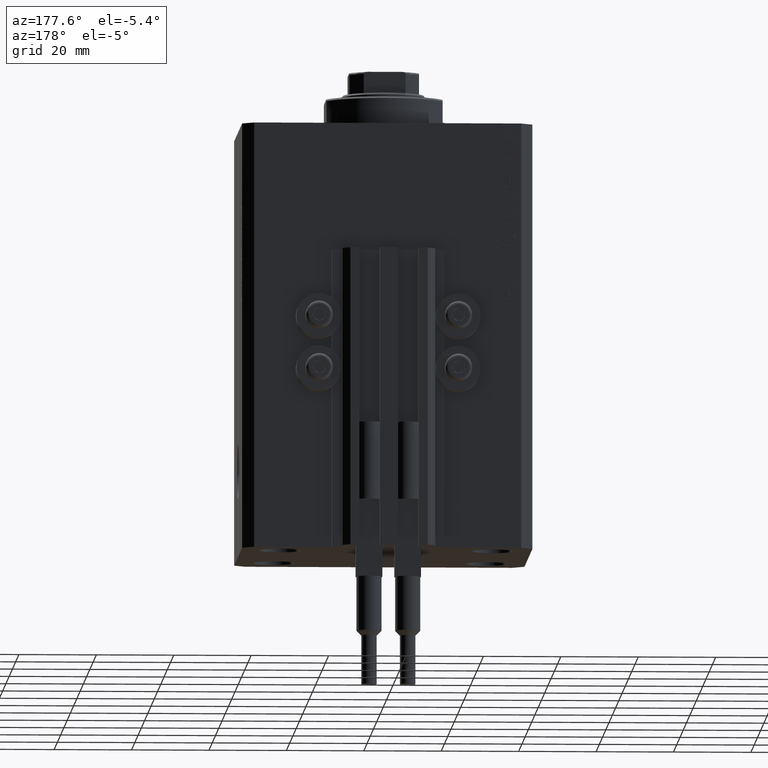
[diagram: clean part render]
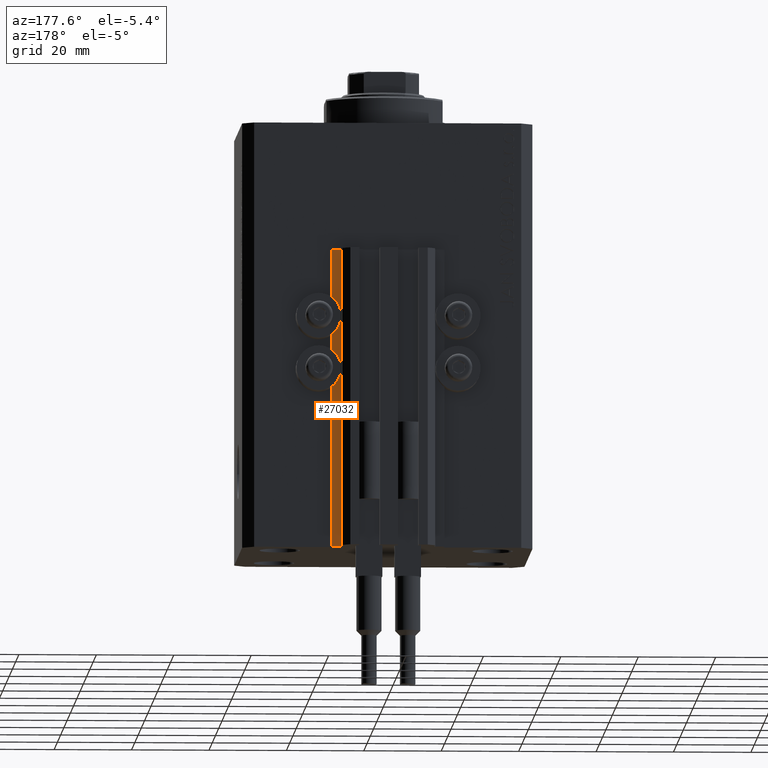
[diagram: same view with one face highlighted and labeled with its STEP entity id]
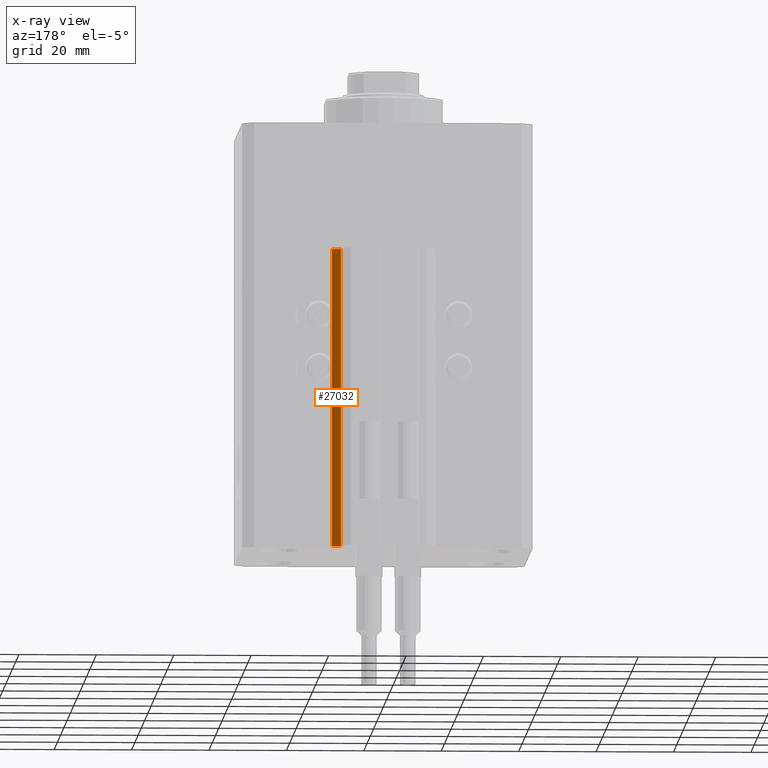
[diagram: x-ray of the same camera — body ghosted, the highlighted face saturated]
A machine part, auxiliary view. The second image highlights one B-rep face of the part: STEP entity #27032.
The next image is the same camera in x-ray: the body ghosted, the highlighted face saturated — about 0% of this face is hidden behind the body in this view.
In plain terms, the highlighted planar face has unit normal (0, 1, 0).
Its self-contained STEP definition (entity closure, byte-faithful):
#1682 = ORIENTED_EDGE ( 'NONE', *, *, #12812, .F. ) ;
#2076 = LINE ( 'NONE', #16879, #43591 ) ;
#4358 = ORIENTED_EDGE ( 'NONE', *, *, #40874, .T. ) ;
#4758 = VERTEX_POINT ( 'NONE', #33096 ) ;
#4768 = EDGE_LOOP ( 'NONE', ( #1682, #12805, #4358, #45604 ) ) ;
#6196 = EDGE_CURVE ( 'NONE', #15167, #37264, #18525, .T. ) ;
#7719 = DIRECTION ( 'NONE',  ( 0.000000000000000000, 1.000000000000000000, -0.000000000000000000 ) ) ;
#11294 = LINE ( 'NONE', #25119, #12738 ) ;
#12555 = CARTESIAN_POINT ( 'NONE',  ( 14.49999999999999645, 30.00000000000002487, -110.0000000000000000 ) ) ;
#12738 = VECTOR ( 'NONE', #40210, 1000.000000000000000 ) ;
#12805 = ORIENTED_EDGE ( 'NONE', *, *, #6196, .F. ) ;
#12812 = EDGE_CURVE ( 'NONE', #37264, #4758, #11294, .T. ) ;
#14079 = VECTOR ( 'NONE', #47931, 1000.000000000000000 ) ;
#15167 = VERTEX_POINT ( 'NONE', #44000 ) ;
#16193 = FACE_OUTER_BOUND ( 'NONE', #4768, .T. ) ;
#16879 = CARTESIAN_POINT ( 'NONE',  ( 12.20000000000000107, 30.00000000000002487, -110.0000000000000000 ) ) ;
#16899 = DIRECTION ( 'NONE',  ( 0.000000000000000000, 0.000000000000000000, 1.000000000000000000 ) ) ;
#17762 = LINE ( 'NONE', #47396, #29853 ) ;
#18525 = LINE ( 'NONE', #25796, #14079 ) ;
#21399 = VERTEX_POINT ( 'NONE', #38243 ) ;
#23738 = CARTESIAN_POINT ( 'NONE',  ( 14.49999999999999645, 30.00000000000002487, -33.00000000000000000 ) ) ;
#25119 = CARTESIAN_POINT ( 'NONE',  ( 14.49999999999999645, 30.00000000000002487, -33.00000000000000000 ) ) ;
#25263 = EDGE_CURVE ( 'NONE', #21399, #4758, #2076, .T. ) ;
#25796 = CARTESIAN_POINT ( 'NONE',  ( 14.49999999999999645, 30.00000000000002487, -110.0000000000000000 ) ) ;
#27032 = ADVANCED_FACE ( 'NONE', ( #16193 ), #30998, .T. ) ;
#29653 = DIRECTION ( 'NONE',  ( -1.000000000000000000, 0.000000000000000000, 0.000000000000000000 ) ) ;
#29853 = VECTOR ( 'NONE', #29653, 1000.000000000000000 ) ;
#30998 = PLANE ( 'NONE',  #32795 ) ;
#32795 = AXIS2_PLACEMENT_3D ( 'NONE', #12555, #7719, #16899 ) ;
#33096 = CARTESIAN_POINT ( 'NONE',  ( 12.20000000000000107, 30.00000000000002487, -33.00000000000000000 ) ) ;
#37264 = VERTEX_POINT ( 'NONE', #23738 ) ;
#38243 = CARTESIAN_POINT ( 'NONE',  ( 12.20000000000000107, 30.00000000000002487, -110.0000000000000000 ) ) ;
#40210 = DIRECTION ( 'NONE',  ( -1.000000000000000000, 0.000000000000000000, 0.000000000000000000 ) ) ;
#40874 = EDGE_CURVE ( 'NONE', #15167, #21399, #17762, .T. ) ;
#43591 = VECTOR ( 'NONE', #44109, 1000.000000000000000 ) ;
#44000 = CARTESIAN_POINT ( 'NONE',  ( 14.49999999999999645, 30.00000000000002487, -110.0000000000000000 ) ) ;
#44109 = DIRECTION ( 'NONE',  ( 0.000000000000000000, 0.000000000000000000, 1.000000000000000000 ) ) ;
#45604 = ORIENTED_EDGE ( 'NONE', *, *, #25263, .T. ) ;
#47396 = CARTESIAN_POINT ( 'NONE',  ( 14.49999999999999645, 30.00000000000002487, -110.0000000000000000 ) ) ;
#47931 = DIRECTION ( 'NONE',  ( 0.000000000000000000, 0.000000000000000000, 1.000000000000000000 ) ) ;